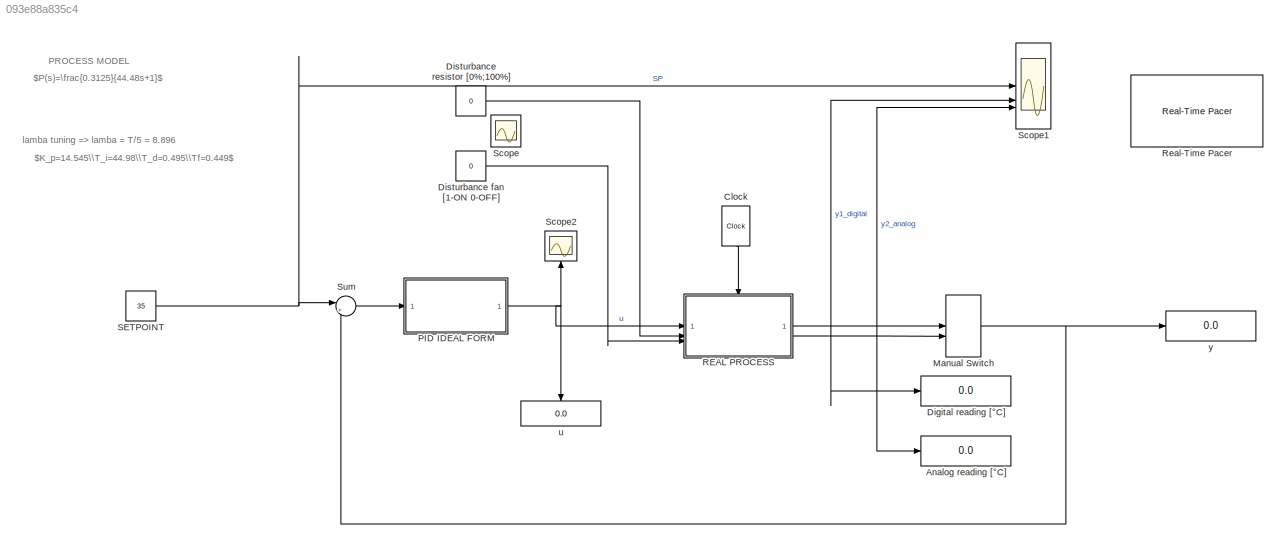
MODEL slx_093e88a835c4
KIND model
CONFIG AbsTol = auto
CONFIG EnableMultiTasking = off
CONFIG FixedStep = 0.1
CONFIG MaxStep = auto
CONFIG MinStep = auto
CONFIG RelTol = 1e-3
CONFIG SampleTimeConstraint = Unconstrained
CONFIG SolverName = ode4
CONFIG StartTime = 0.0
CONFIG StopTime = 300
BLOCK [Display] Analog reading [°C]
  Decimation = 1
BLOCK [Reference] Clock  REF=simulink_extras/Flip Flops/Clock
  NameLocation = left
  SourceBlock = simulink_extras/Flip Flops/Clock
  SourceType = Digital clock
BLOCK [Display] Digital reading [°C]
  Decimation = 1
BLOCK [Constant] Disturbance fan [1-ON 0-OFF]
  Value = 0
BLOCK [Constant] Disturbance resistor [0%;100%]
  Value = 0
BLOCK [ManualSwitch] Manual Switch
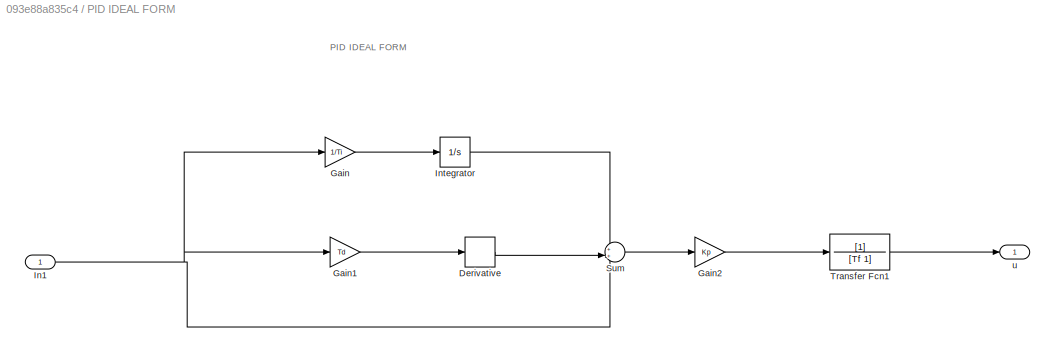
BLOCK [SubSystem] PID IDEAL FORM
BLOCK [Derivative] PID IDEAL FORM/Derivative
BLOCK [Gain] PID IDEAL FORM/Gain
  Gain = 1/Ti
BLOCK [Gain] PID IDEAL FORM/Gain1
  Gain = Td
BLOCK [Gain] PID IDEAL FORM/Gain2
  Gain = Kp
BLOCK [Inport] PID IDEAL FORM/In1
BLOCK [Integrator] PID IDEAL FORM/Integrator
BLOCK [Sum] PID IDEAL FORM/Sum
  Inputs = 3
BLOCK [TransferFcn] PID IDEAL FORM/Transfer Fcn1
  Denominator = [Tf 1]
BLOCK [Outport] PID IDEAL FORM/u
  VectorParamsAs1DForOutWhenUnconnected = off
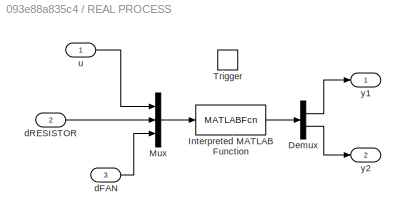
BLOCK [SubSystem] REAL PROCESS
BLOCK [Demux] REAL PROCESS/Demux
  Outputs = 2
BLOCK [MATLABFcn] REAL PROCESS/Interpreted MATLAB Function
  MATLABFcn = setActuatorsAndReadTemperatureSIM
  OutputDimensions = 2
BLOCK [Mux] REAL PROCESS/Mux
  DisplayOption = bar
  Inputs = 3
BLOCK [TriggerPort] REAL PROCESS/Trigger
  PortDimensions = 1
  StatesWhenEnabling = held
  VariantControl = (inherit)
BLOCK [Inport] REAL PROCESS/dFAN
  Port = 3
BLOCK [Inport] REAL PROCESS/dRESISTOR
  Port = 2
BLOCK [Inport] REAL PROCESS/u
BLOCK [Outport] REAL PROCESS/y1
BLOCK [Outport] REAL PROCESS/y2
  Port = 2
BLOCK [Reference] Real-Time Pacer  REF=realtime_pacer_lib/Real-Time Pacer
  SourceBlock = realtime_pacer_lib/Real-Time Pacer
  SourceProductName = Real-Time Pacer
  SourceType = RealTime_Pacer
BLOCK [Constant] SETPOINT
  Value = 35
BLOCK [Scope] Scope
  Floating = off
  IOType = viewer
  NumInputPorts = 1
  ScopeSpecificationString = Simulink.scopes.TimeScopeBlockCfg('CurrentConfiguration', extmgr.ConfigurationSet(extmgr.Configuration('Core','General UI',true),extmgr.Configuration('Core','Source UI',true),extmgr.Configuration('Sources','WiredSimulink',true),extmgr.Configuration('Visuals','Time Domain',true,'SerializedDisplays',{struct('MinYLimReal','-250.00000','MaxYLimReal','250.00000','YLabelReal','','MinYLimMag',' 0.00000',...<+1449ch>
BLOCK [Scope] Scope1
  Floating = off
  NumInputPorts = 3
  ScopeSpecificationString = Simulink.scopes.TimeScopeBlockCfg('CurrentConfiguration', extmgr.ConfigurationSet(extmgr.Configuration('Core','General UI',true),extmgr.Configuration('Core','Source UI',true),extmgr.Configuration('Sources','WiredSimulink',true,'DataLoggingVariableName','ScopeData1'),extmgr.Configuration('Visuals','Time Domain',true,'SerializedDisplays',{struct('MinYLimReal','-6.11','MaxYLimReal','54.99','YLabelRea...<+1599ch>
BLOCK [Scope] Scope2
  Floating = off
  NameLocation = right
  NumInputPorts = 1
  ScopeSpecificationString = Simulink.scopes.TimeScopeBlockCfg('CurrentConfiguration', extmgr.ConfigurationSet(extmgr.Configuration('Core','General UI',true),extmgr.Configuration('Core','Source UI',true),extmgr.Configuration('Sources','WiredSimulink',true,'DataLoggingVariableName','ScopeData1'),extmgr.Configuration('Visuals','Time Domain',true,'SerializedDisplays',{struct('MinYLimReal','-77.11012','MaxYLimReal','67.68365','YL...<+1603ch>
BLOCK [Sum] Sum
  Inputs = |+-
BLOCK [Display] u
  Decimation = 1
  NameLocation = left
BLOCK [Display] y
  Decimation = 1
ANNOTATION (root): $K_p=14.545\\T_i=44.98\\T_d=0.495\\Tf=0.449$
ANNOTATION (root): $P(s)=\frac{0.3125}{44.48s+1}$
ANNOTATION (root): PROCESS MODEL
ANNOTATION (root): lamba tuning => lamba = T/5 = 8.896
ANNOTATION PID IDEAL FORM: PID IDEAL FORM
LINE Clock:1 -> REAL PROCESS:trigger
LINE Disturbance fan [1-ON 0-OFF]:1 -> REAL PROCESS:3
LINE Disturbance resistor [0%;100%]:1 -> REAL PROCESS:2
NET Manual Switch:1 -> Sum:2, y:1
LINE PID IDEAL FORM/Derivative:1 -> PID IDEAL FORM/Sum:2
LINE PID IDEAL FORM/Gain1:1 -> PID IDEAL FORM/Derivative:1
LINE PID IDEAL FORM/Gain2:1 -> PID IDEAL FORM/Transfer Fcn1:1
LINE PID IDEAL FORM/Gain:1 -> PID IDEAL FORM/Integrator:1
NET PID IDEAL FORM/In1:1 -> PID IDEAL FORM/Gain1:1, PID IDEAL FORM/Gain:1, PID IDEAL FORM/Sum:3
LINE PID IDEAL FORM/Integrator:1 -> PID IDEAL FORM/Sum:1
LINE PID IDEAL FORM/Sum:1 -> PID IDEAL FORM/Gain2:1
LINE PID IDEAL FORM/Transfer Fcn1:1 -> PID IDEAL FORM/u:1
NET PID IDEAL FORM:1 -> REAL PROCESS:1, Scope2:1, u:1
LINE REAL PROCESS/Demux:1 -> REAL PROCESS/y1:1
LINE REAL PROCESS/Demux:2 -> REAL PROCESS/y2:1
LINE REAL PROCESS/Interpreted MATLAB Function:1 -> REAL PROCESS/Demux:1
LINE REAL PROCESS/Mux:1 -> REAL PROCESS/Interpreted MATLAB Function:1
LINE REAL PROCESS/dFAN:1 -> REAL PROCESS/Mux:3
LINE REAL PROCESS/dRESISTOR:1 -> REAL PROCESS/Mux:2
LINE REAL PROCESS/u:1 -> REAL PROCESS/Mux:1
NET REAL PROCESS:1 -> Digital reading [°C]:1, Manual Switch:1, Scope1:2
NET REAL PROCESS:2 -> Analog reading [°C]:1, Manual Switch:2, Scope1:3
NET SETPOINT:1 -> Scope1:1, Sum:1
LINE Sum:1 -> PID IDEAL FORM:1
note: NET lines group one-source signal fan-out (src -> all destinations, sorted); 1:1 wires keep LINE
